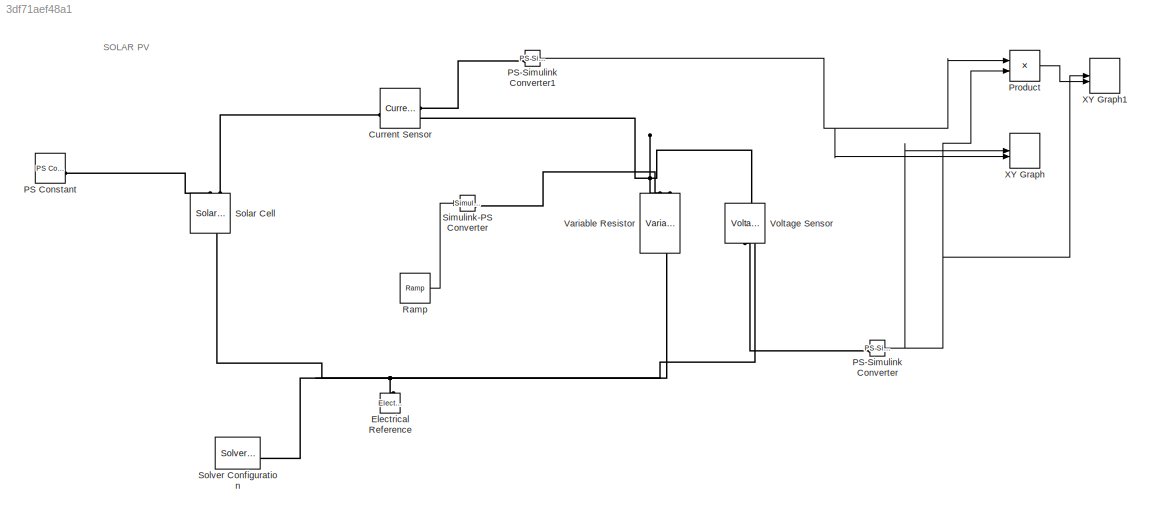
MODEL slx_3df71aef48a1
KIND model
CONFIG AbsTol = auto
CONFIG EnableMultiTasking = off
CONFIG FixedStep = auto
CONFIG MaxStep = auto
CONFIG MinStep = auto
CONFIG RelTol = 1e-3
CONFIG SampleTimeConstraint = Unconstrained
CONFIG SolverName = VariableStepAuto
CONFIG StartTime = 0.0
CONFIG StopTime = 10.0
BLOCK [Reference] Current Sensor  REF=fl_lib/Electrical/Electrical Sensors/Current Sensor
  SourceBlock = fl_lib/Electrical/Electrical Sensors/Current Sensor
  SourceType = Current Sensor
BLOCK [Reference] Electrical Reference  REF=fl_lib/Electrical/Electrical Elements/Electrical Reference
  NameLocation = right
  SourceBlock = fl_lib/Electrical/Electrical Elements/Electrical Reference
  SourceType = Electrical Reference
BLOCK [Reference] PS Constant  REF=fl_lib/Physical Signals/Sources/PS Constant
  SourceBlock = fl_lib/Physical Signals/Sources/PS Constant
  SourceType = PS Constant
BLOCK [Reference] PS-Simulink Converter  REF=nesl_utility/PS-Simulink
Converter
  SourceBlock = nesl_utility/PS-Simulink\nConverter
  SourceType = PS-Simulink\nConverter
BLOCK [Reference] PS-Simulink Converter1  REF=nesl_utility/PS-Simulink
Converter
  SourceBlock = nesl_utility/PS-Simulink\nConverter
  SourceType = PS-Simulink\nConverter
BLOCK [Product] Product
BLOCK [Reference] Ramp  REF=simulink/Sources/Ramp
  SourceBlock = simulink/Sources/Ramp
  SourceType = Ramp
BLOCK [Reference] Simulink-PS Converter  REF=nesl_utility/Simulink-PS
Converter
  SourceBlock = nesl_utility/Simulink-PS\nConverter
  SourceType = Simulink-PS\nConverter
BLOCK [Reference] Solar Cell  REF=ee_lib/Sources/Solar Cell
  NameLocation = right
  SourceBlock = ee_lib/Sources/Solar Cell
  SourceType = Solar Cell
BLOCK [Reference] Solver Configuration  REF=nesl_utility/Solver
Configuration
  SourceBlock = nesl_utility/Solver\nConfiguration
  SourceType = Solver\nConfiguration
BLOCK [Reference] Variable Resistor  REF=fl_lib/Electrical/Electrical Elements/Variable Resistor
  NameLocation = left
  SourceBlock = fl_lib/Electrical/Electrical Elements/Variable Resistor
  SourceType = Variable Resistor
BLOCK [Reference] Voltage Sensor  REF=fl_lib/Electrical/Electrical Sensors/Voltage Sensor
  NameLocation = right
  SourceBlock = fl_lib/Electrical/Electrical Sensors/Voltage Sensor
  SourceType = Voltage Sensor
BLOCK [Record] XY Graph
  CompatibilityTag = XY
  FileSettingsInternal = {"entries":[{"content":{"excelSettings":{"content":{},"type":"Streamout.ExcelSettings"}},"type":"Streamout.FileSettingStorage","uuid":"69038858-473e-401a-b275-5e5174168688"}],"packageUris":["http://schema.mathworks.com/mf0/streamout_blocks/R2020a"],"version":"1.0"}
  Layout = [1 1]
  SignalsInternal = {"entries":[{"content":{"signals":[{"content":{"blockPath":["untitled/XY Graph"],"channel":[],"dimensions":[1],"domain":"untitled/XY Graph","lineColor":"#a2142f","plots":[1],"port":1,"sid":[""],"signalID":139,"signalName":"PS-Simulink\nConverter"},"type":"RecordBlkView.Signal","uuid":"2273a666-eec1-4ed8-9f08-f1782285f915"},{"content":{"blockPath":["untitled/XY Graph"],"channel":[],"dimensions":[1]...<+392ch>
  VisualizationBindings = {"xyplotplugin":{"info":[{"series":[{"bindingParametersList":[{"parameter":"X-Axis","signalID":139,"signalName":"PS-Simulink\nConverter"},{"parameter":"Y-Axis","signalID":143,"signalName":"PS-Simulink\nConverter1"}],"seriesID":54709}],"subplotID":1}]}}
  st = -1
BLOCK [Record] XY Graph1
  CompatibilityTag = XY
  FileSettingsInternal = {"entries":[{"content":{"excelSettings":{"content":{},"type":"Streamout.ExcelSettings"}},"type":"Streamout.FileSettingStorage","uuid":"f31d449f-a356-4b18-b71e-b8449ae3b840"}],"packageUris":["http://schema.mathworks.com/mf0/streamout_blocks/R2020a"],"version":"1.0"}
  Layout = [1 1]
  SignalsInternal = {"entries":[{"content":{"signals":[{"content":{"blockPath":["untitled/XY Graph1"],"channel":[],"dimensions":[1],"domain":"untitled/XY Graph1","lineColor":"#a2142f","plots":[1],"port":1,"sid":[""],"signalID":147,"signalName":"PS-Simulink\nConverter"},"type":"RecordBlkView.Signal","uuid":"6c4d3f12-6524-48de-8e29-480082d3aa5a"},{"content":{"blockPath":["untitled/XY Graph1"],"channel":[],"dimensions":...<+380ch>
  VisualizationBindings = {"xyplotplugin":{"info":[{"series":[{"bindingParametersList":[{"parameter":"X-Axis","signalID":147,"signalName":"PS-Simulink\nConverter"},{"parameter":"Y-Axis","signalID":151,"signalName":"Product"}],"seriesID":48768}],"subplotID":1}]}}
  st = -1
ANNOTATION (root): SOLAR PV
NET PS-Simulink Converter1:1 -> Product:1, XY Graph:2
NET PS-Simulink Converter:1 -> Product:2, XY Graph1:1, XY Graph:1
LINE Product:1 -> XY Graph1:2
LINE Ramp:1 -> Simulink-PS Converter:1
PLINE Current Sensor:LConn1 -- Solar Cell:LConn2
PLINE Current Sensor:RConn1 -- PS-Simulink Converter1:LConn1
PNET net1: Current Sensor:RConn2 -- Variable Resistor:LConn2 -- Voltage Sensor:LConn1
PNET net2: Electrical Reference:LConn1 -- Solar Cell:RConn1 -- Solver Configuration:RConn1 -- Variable Resistor:RConn1 -- Voltage Sensor:RConn2
PLINE PS Constant:RConn1 -- Solar Cell:LConn1
PLINE PS-Simulink Converter:LConn1 -- Voltage Sensor:RConn1
PLINE Simulink-PS Converter:RConn1 -- Variable Resistor:LConn1
note: NET lines group one-source signal fan-out (src -> all destinations, sorted); 1:1 wires keep LINE; PNET lines group multi-terminal physical nets as a canonical sorted terminal list (undirected conserving connections); 2-terminal nets keep the pairwise PLINE form
